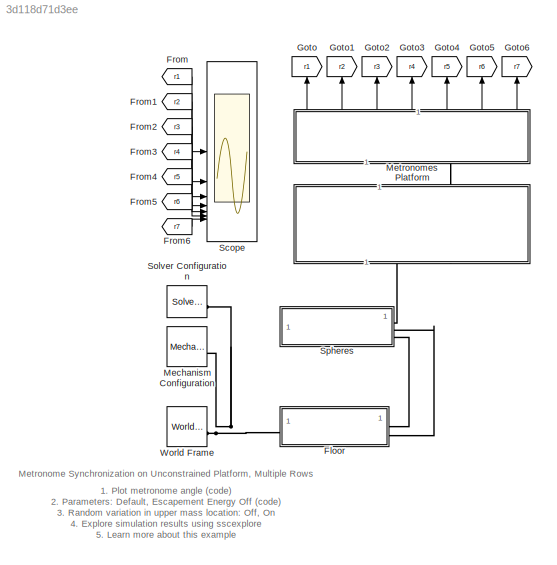
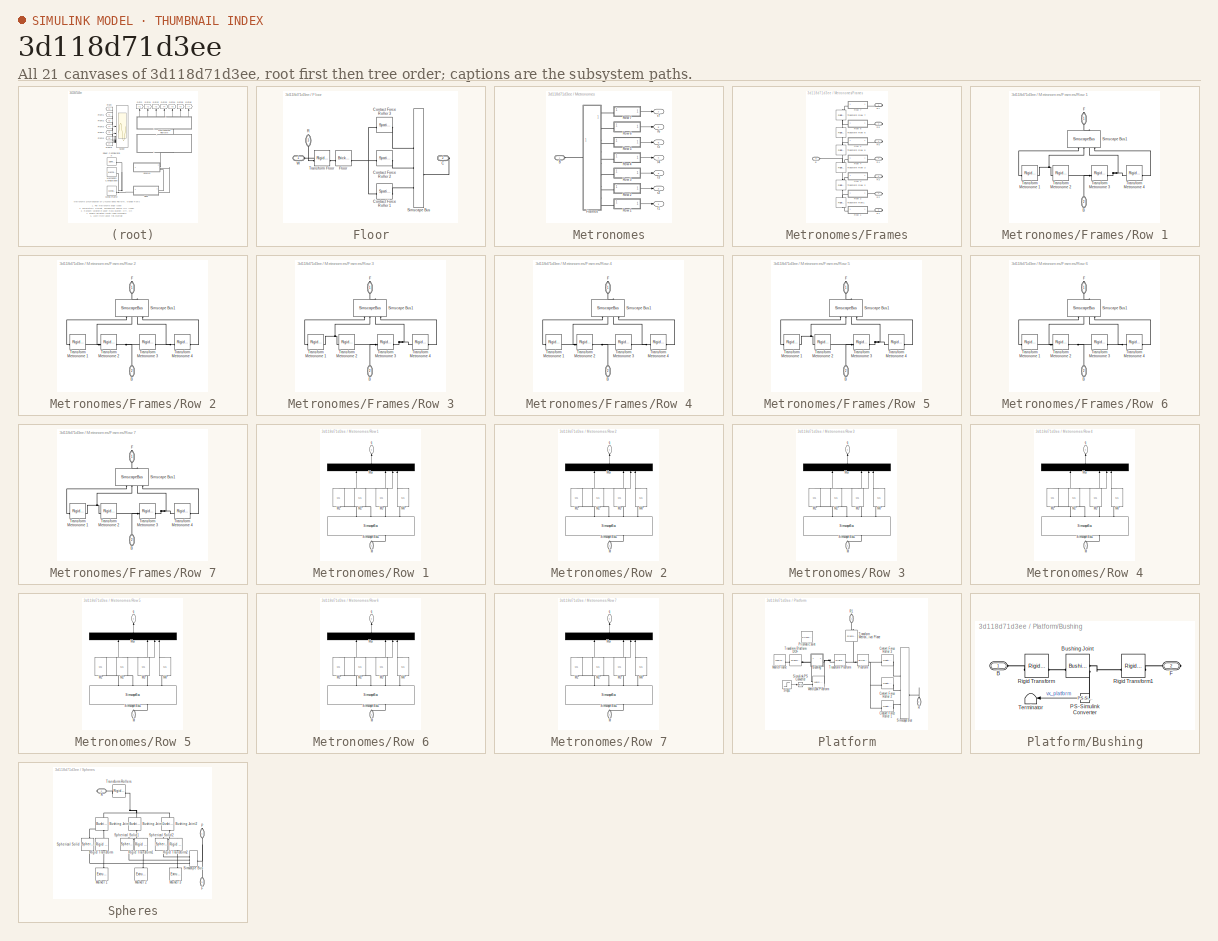
[diagram: thumbnail index - all 21 canvases of the model, root first then tree order]
MODEL slx_3d118d71d3ee
KIND model
CONFIG AbsTol = 1e-3
CONFIG EnableMultiTasking = on
CONFIG MaxStep = 1e-2
CONFIG PreLoadFcn = sm_metronome_sync_param
CONFIG SolverName = ode23t
CONFIG StopTime = 5.52*60
BLOCK [SubSystem] Floor
BLOCK [PMIOPort] Floor/C
  Port = 2
  Side = Right
BLOCK [Reference] Floor/Contact Force Roller 1  REF=sm_lib/Forces and
Torques/Spatial
Contact Force
  SourceBlock = sm_lib/Forces and\nTorques/Spatial\nContact Force
  SourceType = Spatial\nContact Force
BLOCK [Reference] Floor/Contact Force Roller 2  REF=sm_lib/Forces and
Torques/Spatial
Contact Force
  SourceBlock = sm_lib/Forces and\nTorques/Spatial\nContact Force
  SourceType = Spatial\nContact Force
BLOCK [Reference] Floor/Contact Force Roller 3  REF=sm_lib/Forces and
Torques/Spatial
Contact Force
  SourceBlock = sm_lib/Forces and\nTorques/Spatial\nContact Force
  SourceType = Spatial\nContact Force
BLOCK [Reference] Floor/Floor  REF=sm_lib/Body Elements/Brick Solid
  SourceBlock = sm_lib/Body Elements/Brick Solid
  SourceType = Brick Solid
BLOCK [PMIOPort] Floor/R
  NameLocation = right
  Port = 3
  Side = Right
BLOCK [SimscapeBus] Floor/Simscape Bus
  HierarchyStrings = R3;R2;R1
BLOCK [Reference] Floor/Transform Floor  REF=sm_lib/Frames and
Transforms/Rigid
Transform
  SourceBlock = sm_lib/Frames and\nTransforms/Rigid\nTransform
  SourceType = Rigid\nTransform
BLOCK [PMIOPort] Floor/W
  Side = Left
BLOCK [From] From
  GotoTag = r1
BLOCK [From] From1
  GotoTag = r2
BLOCK [From] From2
  GotoTag = r3
BLOCK [From] From3
  GotoTag = r4
BLOCK [From] From4
  GotoTag = r5
BLOCK [From] From5
  GotoTag = r6
BLOCK [From] From6
  GotoTag = r7
BLOCK [Goto] Goto
  GotoTag = r1
  NameLocation = right
BLOCK [Goto] Goto1
  GotoTag = r2
  NameLocation = right
BLOCK [Goto] Goto2
  GotoTag = r3
  NameLocation = right
BLOCK [Goto] Goto3
  GotoTag = r4
  NameLocation = right
BLOCK [Goto] Goto4
  GotoTag = r5
  NameLocation = right
BLOCK [Goto] Goto5
  GotoTag = r6
  NameLocation = right
BLOCK [Goto] Goto6
  GotoTag = r7
  NameLocation = right
BLOCK [Reference] Mechanism Configuration  REF=sm_lib/Utilities/Mechanism
Configuration
  SourceBlock = sm_lib/Utilities/Mechanism\nConfiguration
  SourceType = Mechanism\nConfiguration
BLOCK [SubSystem] Metronomes
  NameLocation = right
BLOCK [PMIOPort] Metronomes/B
  Side = Left
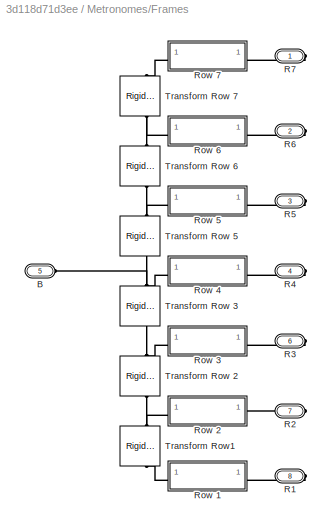
BLOCK [SubSystem] Metronomes/Frames
BLOCK [PMIOPort] Metronomes/Frames/B
  Port = 5
  Side = Left
BLOCK [PMIOPort] Metronomes/Frames/R1
  Port = 8
  Side = Right
BLOCK [PMIOPort] Metronomes/Frames/R2
  Port = 7
  Side = Right
BLOCK [PMIOPort] Metronomes/Frames/R3
  Port = 6
  Side = Right
BLOCK [PMIOPort] Metronomes/Frames/R4
  Port = 4
  Side = Right
BLOCK [PMIOPort] Metronomes/Frames/R5
  Port = 3
  Side = Right
BLOCK [PMIOPort] Metronomes/Frames/R6
  Port = 2
  Side = Right
BLOCK [PMIOPort] Metronomes/Frames/R7
  Side = Right
BLOCK [SubSystem] Metronomes/Frames/Row 1
BLOCK [PMIOPort] Metronomes/Frames/Row 1/B
  NameLocation = left
  Port = 2
  Side = Left
BLOCK [PMIOPort] Metronomes/Frames/Row 1/F
  NameLocation = left
  Side = Right
BLOCK [SimscapeBus] Metronomes/Frames/Row 1/Simscape Bus1
  HierarchyStrings = M1;M2;M3;M4
  NameLocation = right
BLOCK [Reference] Metronomes/Frames/Row 1/Transform Metronome 1  REF=sm_lib/Frames and
Transforms/Rigid
Transform
  SourceBlock = sm_lib/Frames and\nTransforms/Rigid\nTransform
  SourceType = Rigid\nTransform
BLOCK [Reference] Metronomes/Frames/Row 1/Transform Metronome 2  REF=sm_lib/Frames and
Transforms/Rigid
Transform
  SourceBlock = sm_lib/Frames and\nTransforms/Rigid\nTransform
  SourceType = Rigid\nTransform
BLOCK [Reference] Metronomes/Frames/Row 1/Transform Metronome 3  REF=sm_lib/Frames and
Transforms/Rigid
Transform
  SourceBlock = sm_lib/Frames and\nTransforms/Rigid\nTransform
  SourceType = Rigid\nTransform
BLOCK [Reference] Metronomes/Frames/Row 1/Transform Metronome 4  REF=sm_lib/Frames and
Transforms/Rigid
Transform
  SourceBlock = sm_lib/Frames and\nTransforms/Rigid\nTransform
  SourceType = Rigid\nTransform
BLOCK [SubSystem] Metronomes/Frames/Row 2
BLOCK [PMIOPort] Metronomes/Frames/Row 2/B
  NameLocation = left
  Port = 2
  Side = Left
BLOCK [PMIOPort] Metronomes/Frames/Row 2/F
  NameLocation = left
  Side = Right
BLOCK [SimscapeBus] Metronomes/Frames/Row 2/Simscape Bus1
  HierarchyStrings = M1;M2;M3;M4
  NameLocation = right
BLOCK [Reference] Metronomes/Frames/Row 2/Transform Metronome 1  REF=sm_lib/Frames and
Transforms/Rigid
Transform
  SourceBlock = sm_lib/Frames and\nTransforms/Rigid\nTransform
  SourceType = Rigid\nTransform
BLOCK [Reference] Metronomes/Frames/Row 2/Transform Metronome 2  REF=sm_lib/Frames and
Transforms/Rigid
Transform
  SourceBlock = sm_lib/Frames and\nTransforms/Rigid\nTransform
  SourceType = Rigid\nTransform
BLOCK [Reference] Metronomes/Frames/Row 2/Transform Metronome 3  REF=sm_lib/Frames and
Transforms/Rigid
Transform
  SourceBlock = sm_lib/Frames and\nTransforms/Rigid\nTransform
  SourceType = Rigid\nTransform
BLOCK [Reference] Metronomes/Frames/Row 2/Transform Metronome 4  REF=sm_lib/Frames and
Transforms/Rigid
Transform
  SourceBlock = sm_lib/Frames and\nTransforms/Rigid\nTransform
  SourceType = Rigid\nTransform
BLOCK [SubSystem] Metronomes/Frames/Row 3
BLOCK [PMIOPort] Metronomes/Frames/Row 3/B
  NameLocation = left
  Port = 2
  Side = Left
BLOCK [PMIOPort] Metronomes/Frames/Row 3/F
  NameLocation = left
  Side = Right
BLOCK [SimscapeBus] Metronomes/Frames/Row 3/Simscape Bus1
  HierarchyStrings = M1;M2;M3;M4
  NameLocation = right
BLOCK [Reference] Metronomes/Frames/Row 3/Transform Metronome 1  REF=sm_lib/Frames and
Transforms/Rigid
Transform
  SourceBlock = sm_lib/Frames and\nTransforms/Rigid\nTransform
  SourceType = Rigid\nTransform
BLOCK [Reference] Metronomes/Frames/Row 3/Transform Metronome 2  REF=sm_lib/Frames and
Transforms/Rigid
Transform
  SourceBlock = sm_lib/Frames and\nTransforms/Rigid\nTransform
  SourceType = Rigid\nTransform
BLOCK [Reference] Metronomes/Frames/Row 3/Transform Metronome 3  REF=sm_lib/Frames and
Transforms/Rigid
Transform
  SourceBlock = sm_lib/Frames and\nTransforms/Rigid\nTransform
  SourceType = Rigid\nTransform
BLOCK [Reference] Metronomes/Frames/Row 3/Transform Metronome 4  REF=sm_lib/Frames and
Transforms/Rigid
Transform
  SourceBlock = sm_lib/Frames and\nTransforms/Rigid\nTransform
  SourceType = Rigid\nTransform
BLOCK [SubSystem] Metronomes/Frames/Row 4
BLOCK [PMIOPort] Metronomes/Frames/Row 4/B
  NameLocation = left
  Port = 2
  Side = Left
BLOCK [PMIOPort] Metronomes/Frames/Row 4/F
  NameLocation = left
  Side = Right
BLOCK [SimscapeBus] Metronomes/Frames/Row 4/Simscape Bus1
  HierarchyStrings = M1;M2;M3;M4
  NameLocation = right
BLOCK [Reference] Metronomes/Frames/Row 4/Transform Metronome 1  REF=sm_lib/Frames and
Transforms/Rigid
Transform
  SourceBlock = sm_lib/Frames and\nTransforms/Rigid\nTransform
  SourceType = Rigid\nTransform
BLOCK [Reference] Metronomes/Frames/Row 4/Transform Metronome 2  REF=sm_lib/Frames and
Transforms/Rigid
Transform
  SourceBlock = sm_lib/Frames and\nTransforms/Rigid\nTransform
  SourceType = Rigid\nTransform
BLOCK [Reference] Metronomes/Frames/Row 4/Transform Metronome 3  REF=sm_lib/Frames and
Transforms/Rigid
Transform
  SourceBlock = sm_lib/Frames and\nTransforms/Rigid\nTransform
  SourceType = Rigid\nTransform
BLOCK [Reference] Metronomes/Frames/Row 4/Transform Metronome 4  REF=sm_lib/Frames and
Transforms/Rigid
Transform
  SourceBlock = sm_lib/Frames and\nTransforms/Rigid\nTransform
  SourceType = Rigid\nTransform
BLOCK [SubSystem] Metronomes/Frames/Row 5
BLOCK [PMIOPort] Metronomes/Frames/Row 5/B
  NameLocation = left
  Port = 2
  Side = Left
BLOCK [PMIOPort] Metronomes/Frames/Row 5/F
  NameLocation = left
  Side = Right
BLOCK [SimscapeBus] Metronomes/Frames/Row 5/Simscape Bus1
  HierarchyStrings = M1;M2;M3;M4
  NameLocation = right
BLOCK [Reference] Metronomes/Frames/Row 5/Transform Metronome 1  REF=sm_lib/Frames and
Transforms/Rigid
Transform
  SourceBlock = sm_lib/Frames and\nTransforms/Rigid\nTransform
  SourceType = Rigid\nTransform
BLOCK [Reference] Metronomes/Frames/Row 5/Transform Metronome 2  REF=sm_lib/Frames and
Transforms/Rigid
Transform
  SourceBlock = sm_lib/Frames and\nTransforms/Rigid\nTransform
  SourceType = Rigid\nTransform
BLOCK [Reference] Metronomes/Frames/Row 5/Transform Metronome 3  REF=sm_lib/Frames and
Transforms/Rigid
Transform
  SourceBlock = sm_lib/Frames and\nTransforms/Rigid\nTransform
  SourceType = Rigid\nTransform
BLOCK [Reference] Metronomes/Frames/Row 5/Transform Metronome 4  REF=sm_lib/Frames and
Transforms/Rigid
Transform
  SourceBlock = sm_lib/Frames and\nTransforms/Rigid\nTransform
  SourceType = Rigid\nTransform
BLOCK [SubSystem] Metronomes/Frames/Row 6
BLOCK [PMIOPort] Metronomes/Frames/Row 6/B
  NameLocation = left
  Port = 2
  Side = Left
BLOCK [PMIOPort] Metronomes/Frames/Row 6/F
  NameLocation = left
  Side = Right
BLOCK [SimscapeBus] Metronomes/Frames/Row 6/Simscape Bus1
  HierarchyStrings = M1;M2;M3;M4
  NameLocation = right
BLOCK [Reference] Metronomes/Frames/Row 6/Transform Metronome 1  REF=sm_lib/Frames and
Transforms/Rigid
Transform
  SourceBlock = sm_lib/Frames and\nTransforms/Rigid\nTransform
  SourceType = Rigid\nTransform
BLOCK [Reference] Metronomes/Frames/Row 6/Transform Metronome 2  REF=sm_lib/Frames and
Transforms/Rigid
Transform
  SourceBlock = sm_lib/Frames and\nTransforms/Rigid\nTransform
  SourceType = Rigid\nTransform
BLOCK [Reference] Metronomes/Frames/Row 6/Transform Metronome 3  REF=sm_lib/Frames and
Transforms/Rigid
Transform
  SourceBlock = sm_lib/Frames and\nTransforms/Rigid\nTransform
  SourceType = Rigid\nTransform
BLOCK [Reference] Metronomes/Frames/Row 6/Transform Metronome 4  REF=sm_lib/Frames and
Transforms/Rigid
Transform
  SourceBlock = sm_lib/Frames and\nTransforms/Rigid\nTransform
  SourceType = Rigid\nTransform
BLOCK [SubSystem] Metronomes/Frames/Row 7
BLOCK [PMIOPort] Metronomes/Frames/Row 7/B
  NameLocation = left
  Port = 2
  Side = Left
BLOCK [PMIOPort] Metronomes/Frames/Row 7/F
  NameLocation = left
  Side = Right
BLOCK [SimscapeBus] Metronomes/Frames/Row 7/Simscape Bus1
  HierarchyStrings = M1;M2;M3;M4
  NameLocation = right
BLOCK [Reference] Metronomes/Frames/Row 7/Transform Metronome 1  REF=sm_lib/Frames and
Transforms/Rigid
Transform
  SourceBlock = sm_lib/Frames and\nTransforms/Rigid\nTransform
  SourceType = Rigid\nTransform
BLOCK [Reference] Metronomes/Frames/Row 7/Transform Metronome 2  REF=sm_lib/Frames and
Transforms/Rigid
Transform
  SourceBlock = sm_lib/Frames and\nTransforms/Rigid\nTransform
  SourceType = Rigid\nTransform
BLOCK [Reference] Metronomes/Frames/Row 7/Transform Metronome 3  REF=sm_lib/Frames and
Transforms/Rigid
Transform
  SourceBlock = sm_lib/Frames and\nTransforms/Rigid\nTransform
  SourceType = Rigid\nTransform
BLOCK [Reference] Metronomes/Frames/Row 7/Transform Metronome 4  REF=sm_lib/Frames and
Transforms/Rigid
Transform
  SourceBlock = sm_lib/Frames and\nTransforms/Rigid\nTransform
  SourceType = Rigid\nTransform
BLOCK [Reference] Metronomes/Frames/Transform Row 2  REF=sm_lib/Frames and
Transforms/Rigid
Transform
  NameLocation = left
  SourceBlock = sm_lib/Frames and\nTransforms/Rigid\nTransform
  SourceType = Rigid\nTransform
BLOCK [Reference] Metronomes/Frames/Transform Row 3  REF=sm_lib/Frames and
Transforms/Rigid
Transform
  NameLocation = left
  SourceBlock = sm_lib/Frames and\nTransforms/Rigid\nTransform
  SourceType = Rigid\nTransform
BLOCK [Reference] Metronomes/Frames/Transform Row 5  REF=sm_lib/Frames and
Transforms/Rigid
Transform
  NameLocation = left
  SourceBlock = sm_lib/Frames and\nTransforms/Rigid\nTransform
  SourceType = Rigid\nTransform
BLOCK [Reference] Metronomes/Frames/Transform Row 6  REF=sm_lib/Frames and
Transforms/Rigid
Transform
  NameLocation = left
  SourceBlock = sm_lib/Frames and\nTransforms/Rigid\nTransform
  SourceType = Rigid\nTransform
BLOCK [Reference] Metronomes/Frames/Transform Row 7  REF=sm_lib/Frames and
Transforms/Rigid
Transform
  NameLocation = left
  SourceBlock = sm_lib/Frames and\nTransforms/Rigid\nTransform
  SourceType = Rigid\nTransform
BLOCK [Reference] Metronomes/Frames/Transform Row1  REF=sm_lib/Frames and
Transforms/Rigid
Transform
  NameLocation = left
  SourceBlock = sm_lib/Frames and\nTransforms/Rigid\nTransform
  SourceType = Rigid\nTransform
BLOCK [SubSystem] Metronomes/Row 1
BLOCK [PMIOPort] Metronomes/Row 1/M
  NameLocation = right
  Side = Left
BLOCK [Reference] Metronomes/Row 1/M1  REF=sm_metronome_lib/M1  (lib defined in slx_9433ba20aabc)
  NameLocation = right
  SourceBlock = sm_metronome_lib/M1
  SourceType = Metronome
BLOCK [Reference] Metronomes/Row 1/M2  REF=sm_metronome_lib/M1  (lib defined in slx_9433ba20aabc)
  NameLocation = right
  SourceBlock = sm_metronome_lib/M1
  SourceType = Metronome
BLOCK [Reference] Metronomes/Row 1/M3  REF=sm_metronome_lib/M1  (lib defined in slx_9433ba20aabc)
  NameLocation = right
  SourceBlock = sm_metronome_lib/M1
  SourceType = Metronome
BLOCK [Reference] Metronomes/Row 1/M4  REF=sm_metronome_lib/M1  (lib defined in slx_9433ba20aabc)
  NameLocation = right
  SourceBlock = sm_metronome_lib/M1
  SourceType = Metronome
BLOCK [Mux] Metronomes/Row 1/Mux
  DisplayOption = bar
  NameLocation = right
BLOCK [SimscapeBus] Metronomes/Row 1/Simscape Bus1
  HierarchyStrings = M1;M2;M3;M4
  NameLocation = left
BLOCK [Outport] Metronomes/Row 1/q
  NameLocation = right
BLOCK [SubSystem] Metronomes/Row 2
BLOCK [PMIOPort] Metronomes/Row 2/M
  NameLocation = right
  Side = Left
BLOCK [Reference] Metronomes/Row 2/M1  REF=sm_metronome_lib/M1  (lib defined in slx_9433ba20aabc)
  NameLocation = right
  SourceBlock = sm_metronome_lib/M1
  SourceType = Metronome
BLOCK [Reference] Metronomes/Row 2/M2  REF=sm_metronome_lib/M1  (lib defined in slx_9433ba20aabc)
  NameLocation = right
  SourceBlock = sm_metronome_lib/M1
  SourceType = Metronome
BLOCK [Reference] Metronomes/Row 2/M3  REF=sm_metronome_lib/M1  (lib defined in slx_9433ba20aabc)
  NameLocation = right
  SourceBlock = sm_metronome_lib/M1
  SourceType = Metronome
BLOCK [Reference] Metronomes/Row 2/M4  REF=sm_metronome_lib/M1  (lib defined in slx_9433ba20aabc)
  NameLocation = right
  SourceBlock = sm_metronome_lib/M1
  SourceType = Metronome
BLOCK [Mux] Metronomes/Row 2/Mux
  DisplayOption = bar
  NameLocation = right
BLOCK [SimscapeBus] Metronomes/Row 2/Simscape Bus1
  HierarchyStrings = M1;M2;M3;M4
  NameLocation = left
BLOCK [Outport] Metronomes/Row 2/q
  NameLocation = right
BLOCK [SubSystem] Metronomes/Row 3
BLOCK [PMIOPort] Metronomes/Row 3/M
  NameLocation = right
  Side = Left
BLOCK [Reference] Metronomes/Row 3/M1  REF=sm_metronome_lib/M1  (lib defined in slx_9433ba20aabc)
  NameLocation = right
  SourceBlock = sm_metronome_lib/M1
  SourceType = Metronome
BLOCK [Reference] Metronomes/Row 3/M2  REF=sm_metronome_lib/M1  (lib defined in slx_9433ba20aabc)
  NameLocation = right
  SourceBlock = sm_metronome_lib/M1
  SourceType = Metronome
BLOCK [Reference] Metronomes/Row 3/M3  REF=sm_metronome_lib/M1  (lib defined in slx_9433ba20aabc)
  NameLocation = right
  SourceBlock = sm_metronome_lib/M1
  SourceType = Metronome
BLOCK [Reference] Metronomes/Row 3/M4  REF=sm_metronome_lib/M1  (lib defined in slx_9433ba20aabc)
  NameLocation = right
  SourceBlock = sm_metronome_lib/M1
  SourceType = Metronome
BLOCK [Mux] Metronomes/Row 3/Mux
  DisplayOption = bar
  NameLocation = right
BLOCK [SimscapeBus] Metronomes/Row 3/Simscape Bus1
  HierarchyStrings = M1;M2;M3;M4
  NameLocation = left
BLOCK [Outport] Metronomes/Row 3/q
  NameLocation = right
BLOCK [SubSystem] Metronomes/Row 4
BLOCK [PMIOPort] Metronomes/Row 4/M
  NameLocation = right
  Side = Left
BLOCK [Reference] Metronomes/Row 4/M1  REF=sm_metronome_lib/M1  (lib defined in slx_9433ba20aabc)
  NameLocation = right
  SourceBlock = sm_metronome_lib/M1
  SourceType = Metronome
BLOCK [Reference] Metronomes/Row 4/M2  REF=sm_metronome_lib/M1  (lib defined in slx_9433ba20aabc)
  NameLocation = right
  SourceBlock = sm_metronome_lib/M1
  SourceType = Metronome
BLOCK [Reference] Metronomes/Row 4/M3  REF=sm_metronome_lib/M1  (lib defined in slx_9433ba20aabc)
  NameLocation = right
  SourceBlock = sm_metronome_lib/M1
  SourceType = Metronome
BLOCK [Reference] Metronomes/Row 4/M4  REF=sm_metronome_lib/M1  (lib defined in slx_9433ba20aabc)
  NameLocation = right
  SourceBlock = sm_metronome_lib/M1
  SourceType = Metronome
BLOCK [Mux] Metronomes/Row 4/Mux
  DisplayOption = bar
  NameLocation = right
BLOCK [SimscapeBus] Metronomes/Row 4/Simscape Bus1
  HierarchyStrings = M1;M2;M3;M4
  NameLocation = left
BLOCK [Outport] Metronomes/Row 4/q
  NameLocation = right
BLOCK [SubSystem] Metronomes/Row 5
BLOCK [PMIOPort] Metronomes/Row 5/M
  NameLocation = right
  Side = Left
BLOCK [Reference] Metronomes/Row 5/M1  REF=sm_metronome_lib/M1  (lib defined in slx_9433ba20aabc)
  NameLocation = right
  SourceBlock = sm_metronome_lib/M1
  SourceType = Metronome
BLOCK [Reference] Metronomes/Row 5/M2  REF=sm_metronome_lib/M1  (lib defined in slx_9433ba20aabc)
  NameLocation = right
  SourceBlock = sm_metronome_lib/M1
  SourceType = Metronome
BLOCK [Reference] Metronomes/Row 5/M3  REF=sm_metronome_lib/M1  (lib defined in slx_9433ba20aabc)
  NameLocation = right
  SourceBlock = sm_metronome_lib/M1
  SourceType = Metronome
BLOCK [Reference] Metronomes/Row 5/M4  REF=sm_metronome_lib/M1  (lib defined in slx_9433ba20aabc)
  NameLocation = right
  SourceBlock = sm_metronome_lib/M1
  SourceType = Metronome
BLOCK [Mux] Metronomes/Row 5/Mux
  DisplayOption = bar
  NameLocation = right
BLOCK [SimscapeBus] Metronomes/Row 5/Simscape Bus1
  HierarchyStrings = M1;M2;M3;M4
  NameLocation = left
BLOCK [Outport] Metronomes/Row 5/q
  NameLocation = right
BLOCK [SubSystem] Metronomes/Row 6
BLOCK [PMIOPort] Metronomes/Row 6/M
  NameLocation = right
  Side = Left
BLOCK [Reference] Metronomes/Row 6/M1  REF=sm_metronome_lib/M1  (lib defined in slx_9433ba20aabc)
  NameLocation = right
  SourceBlock = sm_metronome_lib/M1
  SourceType = Metronome
BLOCK [Reference] Metronomes/Row 6/M2  REF=sm_metronome_lib/M1  (lib defined in slx_9433ba20aabc)
  NameLocation = right
  SourceBlock = sm_metronome_lib/M1
  SourceType = Metronome
BLOCK [Reference] Metronomes/Row 6/M3  REF=sm_metronome_lib/M1  (lib defined in slx_9433ba20aabc)
  NameLocation = right
  SourceBlock = sm_metronome_lib/M1
  SourceType = Metronome
BLOCK [Reference] Metronomes/Row 6/M4  REF=sm_metronome_lib/M1  (lib defined in slx_9433ba20aabc)
  NameLocation = right
  SourceBlock = sm_metronome_lib/M1
  SourceType = Metronome
BLOCK [Mux] Metronomes/Row 6/Mux
  DisplayOption = bar
  NameLocation = right
BLOCK [SimscapeBus] Metronomes/Row 6/Simscape Bus1
  HierarchyStrings = M1;M2;M3;M4
  NameLocation = left
BLOCK [Outport] Metronomes/Row 6/q
  NameLocation = right
BLOCK [SubSystem] Metronomes/Row 7
BLOCK [PMIOPort] Metronomes/Row 7/M
  NameLocation = right
  Side = Left
BLOCK [Reference] Metronomes/Row 7/M1  REF=sm_metronome_lib/M1  (lib defined in slx_9433ba20aabc)
  NameLocation = right
  SourceBlock = sm_metronome_lib/M1
  SourceType = Metronome
BLOCK [Reference] Metronomes/Row 7/M2  REF=sm_metronome_lib/M1  (lib defined in slx_9433ba20aabc)
  NameLocation = right
  SourceBlock = sm_metronome_lib/M1
  SourceType = Metronome
BLOCK [Reference] Metronomes/Row 7/M3  REF=sm_metronome_lib/M1  (lib defined in slx_9433ba20aabc)
  NameLocation = right
  SourceBlock = sm_metronome_lib/M1
  SourceType = Metronome
BLOCK [Reference] Metronomes/Row 7/M4  REF=sm_metronome_lib/M1  (lib defined in slx_9433ba20aabc)
  NameLocation = right
  SourceBlock = sm_metronome_lib/M1
  SourceType = Metronome
BLOCK [Mux] Metronomes/Row 7/Mux
  DisplayOption = bar
  NameLocation = right
BLOCK [SimscapeBus] Metronomes/Row 7/Simscape Bus1
  HierarchyStrings = M1;M2;M3;M4
  NameLocation = left
BLOCK [Outport] Metronomes/Row 7/q
  NameLocation = right
BLOCK [Outport] Metronomes/r1
BLOCK [Outport] Metronomes/r2
  Port = 2
BLOCK [Outport] Metronomes/r3
  Port = 3
BLOCK [Outport] Metronomes/r4
  Port = 4
BLOCK [Outport] Metronomes/r5
  Port = 5
BLOCK [Outport] Metronomes/r6
  Port = 6
BLOCK [Outport] Metronomes/r7
  Port = 7
BLOCK [SubSystem] Platform
  NameLocation = right
BLOCK [SubSystem] Platform/Bushing
BLOCK [PMIOPort] Platform/Bushing/B
  Side = Left
BLOCK [Reference] Platform/Bushing/Bushing Joint  REF=sm_lib/Joints/Bushing Joint
  SourceBlock = sm_lib/Joints/Bushing Joint
  SourceType = Bushing Joint
BLOCK [PMIOPort] Platform/Bushing/F
  Port = 2
  Side = Right
BLOCK [Reference] Platform/Bushing/PS-Simulink Converter  REF=nesl_utility/PS-Simulink
Converter
  NameLocation = top
  SourceBlock = nesl_utility/PS-Simulink\nConverter
  SourceType = PS-Simulink\nConverter
BLOCK [Reference] Platform/Bushing/Rigid Transform  REF=sm_lib/Frames and
Transforms/Rigid
Transform
  SourceBlock = sm_lib/Frames and\nTransforms/Rigid\nTransform
  SourceType = Rigid\nTransform
BLOCK [Reference] Platform/Bushing/Rigid Transform1  REF=sm_lib/Frames and
Transforms/Rigid
Transform
  SourceBlock = sm_lib/Frames and\nTransforms/Rigid\nTransform
  SourceType = Rigid\nTransform
BLOCK [Terminator] Platform/Bushing/Terminator
  NameLocation = top
BLOCK [Reference] Platform/Contact Force Roller 1  REF=sm_lib/Forces and
Torques/Spatial
Contact Force
  SourceBlock = sm_lib/Forces and\nTorques/Spatial\nContact Force
  SourceType = Spatial\nContact Force
BLOCK [Reference] Platform/Contact Force Roller 2  REF=sm_lib/Forces and
Torques/Spatial
Contact Force
  SourceBlock = sm_lib/Forces and\nTorques/Spatial\nContact Force
  SourceType = Spatial\nContact Force
BLOCK [Reference] Platform/Contact Force Roller 3  REF=sm_lib/Forces and
Torques/Spatial
Contact Force
  SourceBlock = sm_lib/Forces and\nTorques/Spatial\nContact Force
  SourceType = Spatial\nContact Force
BLOCK [Reference] Platform/Platform  REF=sm_lib/Body Elements/Brick Solid
  SourceBlock = sm_lib/Body Elements/Brick Solid
  SourceType = Brick Solid
BLOCK [Reference] Platform/Prismatic Joint  REF=sm_lib/Joints/Prismatic
Joint
  Commented = on
  SourceBlock = sm_lib/Joints/Prismatic\nJoint
  SourceType = Prismatic\nJoint
BLOCK [PMIOPort] Platform/R
  NameLocation = left
  Port = 2
  Side = Left
BLOCK [PMIOPort] Platform/R1
  NameLocation = right
  Side = Right
BLOCK [SimscapeBus] Platform/Simscape Bus
  HierarchyStrings = R3;R2;R1
BLOCK [Reference] Platform/Simulink-PS Converter  REF=nesl_utility/Simulink-PS
Converter
  NameLocation = top
  SourceBlock = nesl_utility/Simulink-PS\nConverter
  SourceType = Simulink-PS\nConverter
BLOCK [Step] Platform/Step1
  FinalValue = -1
  NameLocation = top
  SampleTime = 0
  Time = t_unlock
BLOCK [Reference] Platform/Transform Metronome Pivot Plane  REF=sm_lib/Frames and
Transforms/Rigid
Transform
  NameLocation = left
  SourceBlock = sm_lib/Frames and\nTransforms/Rigid\nTransform
  SourceType = Rigid\nTransform
BLOCK [Reference] Platform/Transform Platform  REF=sm_lib/Frames and
Transforms/Rigid
Transform
  SourceBlock = sm_lib/Frames and\nTransforms/Rigid\nTransform
  SourceType = Rigid\nTransform
BLOCK [Reference] Platform/Transform Platform DOF  REF=sm_lib/Frames and
Transforms/Rigid
Transform
  SourceBlock = sm_lib/Frames and\nTransforms/Rigid\nTransform
  SourceType = Rigid\nTransform
BLOCK [Reference] Platform/Weld Lock Platform  REF=sm_lib/Joints/Weld Joint
  SourceBlock = sm_lib/Joints/Weld Joint
  SourceType = Weld Joint
BLOCK [Reference] Platform/World Frame  REF=sm_lib/Frames and
Transforms/World Frame
  SourceBlock = sm_lib/Frames and\nTransforms/World Frame
  SourceType = World Frame
BLOCK [Scope] Scope
  ActiveDisplayYMaximum = 1.08047
  ActiveDisplayYMinimum = -1.08109
  DataLogging = on
  DataLoggingSaveFormat = Structure With Time
  DataLoggingVariableName = MetronomeAngles
  Floating = off
  GraphicalSettings = {"GraphicalSettings":{"LegacySettings":true,"Style":{"AxesScalingProperties":{"ScaleAxesLimitsAtStop":false},"Style":{"AxesColor":"[0 0 0]","BackgroundColor":"[0 0 0]","ChannelNames":[""],"ColorOrder":"[1 0.909803921568627 0.392156862745098;0.149019607843137 0.549019607843137 0.866666666666667;0.96078431372549 0.466666666666667 0.16078431372549;0.286274509803922 0.858823529411765 0.250980392156863...<+1147ch>
  MultipleDisplayCache = [{"MaxYLimMag":1.08109,"MaxYLimReal":1.08047,"MinYLimMag":0,"MinYLimReal":-1.08109,"PlotAsMagnitudePhase":false,"ShowGrid":true,"ShowLegend":false,"Title":"%<SignalLabel>","YLabel":""}]
  NumInputPorts = 7
  ShowTimeAxisLabel = on
  TimeSpan = 5.52/2
  TimeSpanOverrunAction = Scroll
  TimeUnits = Seconds
  WasSavedAsWebScope = on
  WindowPosition = [613 320 582 458]
BLOCK [Reference] Solver Configuration  REF=nesl_utility/Solver
Configuration
  SourceBlock = nesl_utility/Solver\nConfiguration
  SourceType = Solver\nConfiguration
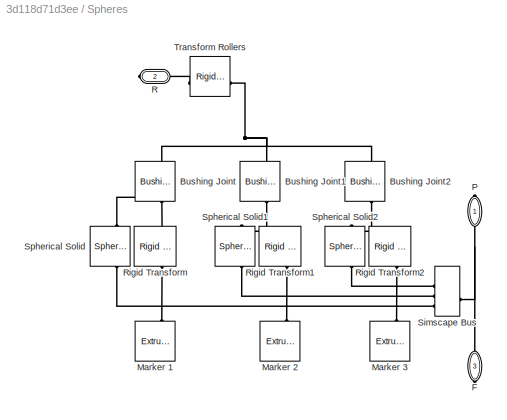
BLOCK [SubSystem] Spheres
BLOCK [Reference] Spheres/Bushing Joint  REF=sm_lib/Joints/Bushing Joint
  NameLocation = left
  SourceBlock = sm_lib/Joints/Bushing Joint
  SourceType = Bushing Joint
BLOCK [Reference] Spheres/Bushing Joint1  REF=sm_lib/Joints/Bushing Joint
  NameLocation = left
  SourceBlock = sm_lib/Joints/Bushing Joint
  SourceType = Bushing Joint
BLOCK [Reference] Spheres/Bushing Joint2  REF=sm_lib/Joints/Bushing Joint
  NameLocation = left
  SourceBlock = sm_lib/Joints/Bushing Joint
  SourceType = Bushing Joint
BLOCK [PMIOPort] Spheres/F
  NameLocation = left
  Port = 3
  Side = Right
BLOCK [Reference] Spheres/Marker 1  REF=sm_lib/Body Elements/Extruded Solid
  SourceBlock = sm_lib/Body Elements/Extruded Solid
  SourceType = Extruded Solid
BLOCK [Reference] Spheres/Marker 2  REF=sm_lib/Body Elements/Extruded Solid
  SourceBlock = sm_lib/Body Elements/Extruded Solid
  SourceType = Extruded Solid
BLOCK [Reference] Spheres/Marker 3  REF=sm_lib/Body Elements/Extruded Solid
  SourceBlock = sm_lib/Body Elements/Extruded Solid
  SourceType = Extruded Solid
BLOCK [PMIOPort] Spheres/P
  NameLocation = left
  Side = Right
BLOCK [PMIOPort] Spheres/R
  Port = 2
  Side = Right
BLOCK [Reference] Spheres/Rigid Transform  REF=sm_lib/Frames and
Transforms/Rigid
Transform
  NameLocation = right
  SourceBlock = sm_lib/Frames and\nTransforms/Rigid\nTransform
  SourceType = Rigid\nTransform
BLOCK [Reference] Spheres/Rigid Transform1  REF=sm_lib/Frames and
Transforms/Rigid
Transform
  NameLocation = right
  SourceBlock = sm_lib/Frames and\nTransforms/Rigid\nTransform
  SourceType = Rigid\nTransform
BLOCK [Reference] Spheres/Rigid Transform2  REF=sm_lib/Frames and
Transforms/Rigid
Transform
  NameLocation = right
  SourceBlock = sm_lib/Frames and\nTransforms/Rigid\nTransform
  SourceType = Rigid\nTransform
BLOCK [SimscapeBus] Spheres/Simscape Bus
  HierarchyStrings = R3;R2;R1
BLOCK [Reference] Spheres/Spherical Solid  REF=sm_lib/Body Elements/Spherical Solid
  NameLocation = right
  SourceBlock = sm_lib/Body Elements/Spherical Solid
  SourceType = Spherical Solid
BLOCK [Reference] Spheres/Spherical Solid1  REF=sm_lib/Body Elements/Spherical Solid
  NameLocation = right
  SourceBlock = sm_lib/Body Elements/Spherical Solid
  SourceType = Spherical Solid
BLOCK [Reference] Spheres/Spherical Solid2  REF=sm_lib/Body Elements/Spherical Solid
  NameLocation = right
  SourceBlock = sm_lib/Body Elements/Spherical Solid
  SourceType = Spherical Solid
BLOCK [Reference] Spheres/Transform Rollers  REF=sm_lib/Frames and
Transforms/Rigid
Transform
  SourceBlock = sm_lib/Frames and\nTransforms/Rigid\nTransform
  SourceType = Rigid\nTransform
BLOCK [Reference] World Frame  REF=sm_lib/Frames and
Transforms/World Frame
  SourceBlock = sm_lib/Frames and\nTransforms/World Frame
  SourceType = World Frame
ANNOTATION (root): 1. Plot metronome angle ( code ) 2. Parameters: Default , Escapement Energy Off ( code ) 3. Random variation in upper mass location: Off , On 4. Explore simulation results using sscexplore 5. Learn more about this example
ANNOTATION (root): Metronome Synchronization on Unconstrained Platform, Multiple Rows
LINE From1:1 -> Scope:2
LINE From2:1 -> Scope:3
LINE From3:1 -> Scope:4
LINE From4:1 -> Scope:5
LINE From5:1 -> Scope:6
LINE From6:1 -> Scope:7
LINE From:1 -> Scope:1
LINE Metronomes/Row 1/M1:1 -> Metronomes/Row 1/Mux:1
LINE Metronomes/Row 1/M2:1 -> Metronomes/Row 1/Mux:2
LINE Metronomes/Row 1/M3:1 -> Metronomes/Row 1/Mux:3
LINE Metronomes/Row 1/M4:1 -> Metronomes/Row 1/Mux:4
LINE Metronomes/Row 1/Mux:1 -> Metronomes/Row 1/q:1
LINE Metronomes/Row 1:1 -> Metronomes/r1:1
LINE Metronomes/Row 2/M1:1 -> Metronomes/Row 2/Mux:1
LINE Metronomes/Row 2/M2:1 -> Metronomes/Row 2/Mux:2
LINE Metronomes/Row 2/M3:1 -> Metronomes/Row 2/Mux:3
LINE Metronomes/Row 2/M4:1 -> Metronomes/Row 2/Mux:4
LINE Metronomes/Row 2/Mux:1 -> Metronomes/Row 2/q:1
LINE Metronomes/Row 2:1 -> Metronomes/r2:1
LINE Metronomes/Row 3/M1:1 -> Metronomes/Row 3/Mux:1
LINE Metronomes/Row 3/M2:1 -> Metronomes/Row 3/Mux:2
LINE Metronomes/Row 3/M3:1 -> Metronomes/Row 3/Mux:3
LINE Metronomes/Row 3/M4:1 -> Metronomes/Row 3/Mux:4
LINE Metronomes/Row 3/Mux:1 -> Metronomes/Row 3/q:1
LINE Metronomes/Row 3:1 -> Metronomes/r3:1
LINE Metronomes/Row 4/M1:1 -> Metronomes/Row 4/Mux:1
LINE Metronomes/Row 4/M2:1 -> Metronomes/Row 4/Mux:2
LINE Metronomes/Row 4/M3:1 -> Metronomes/Row 4/Mux:3
LINE Metronomes/Row 4/M4:1 -> Metronomes/Row 4/Mux:4
LINE Metronomes/Row 4/Mux:1 -> Metronomes/Row 4/q:1
LINE Metronomes/Row 4:1 -> Metronomes/r4:1
LINE Metronomes/Row 5/M1:1 -> Metronomes/Row 5/Mux:1
LINE Metronomes/Row 5/M2:1 -> Metronomes/Row 5/Mux:2
LINE Metronomes/Row 5/M3:1 -> Metronomes/Row 5/Mux:3
LINE Metronomes/Row 5/M4:1 -> Metronomes/Row 5/Mux:4
LINE Metronomes/Row 5/Mux:1 -> Metronomes/Row 5/q:1
LINE Metronomes/Row 5:1 -> Metronomes/r5:1
LINE Metronomes/Row 6/M1:1 -> Metronomes/Row 6/Mux:1
LINE Metronomes/Row 6/M2:1 -> Metronomes/Row 6/Mux:2
LINE Metronomes/Row 6/M3:1 -> Metronomes/Row 6/Mux:3
LINE Metronomes/Row 6/M4:1 -> Metronomes/Row 6/Mux:4
LINE Metronomes/Row 6/Mux:1 -> Metronomes/Row 6/q:1
LINE Metronomes/Row 6:1 -> Metronomes/r6:1
LINE Metronomes/Row 7/M1:1 -> Metronomes/Row 7/Mux:1
LINE Metronomes/Row 7/M2:1 -> Metronomes/Row 7/Mux:2
LINE Metronomes/Row 7/M3:1 -> Metronomes/Row 7/Mux:3
LINE Metronomes/Row 7/M4:1 -> Metronomes/Row 7/Mux:4
LINE Metronomes/Row 7/Mux:1 -> Metronomes/Row 7/q:1
LINE Metronomes/Row 7:1 -> Metronomes/r7:1
LINE Metronomes:1 -> Goto:1
LINE Metronomes:2 -> Goto1:1
LINE Metronomes:3 -> Goto2:1
LINE Metronomes:4 -> Goto3:1
LINE Metronomes:5 -> Goto4:1
LINE Metronomes:6 -> Goto5:1
LINE Metronomes:7 -> Goto6:1
LINE Platform/Bushing/PS-Simulink Converter:1 -> Platform/Bushing/Terminator:1
LINE Platform/Step1:1 -> Platform/Simulink-PS Converter:1
PLINE Floor/C:RConn1 -- Floor/Simscape Bus:RConn1
PNET net1: Floor/Contact Force Roller 1:LConn1 -- Floor/Contact Force Roller 2:LConn1 -- Floor/Contact Force Roller 3:LConn1 -- Floor/Floor:LConn1
PLINE Floor/Contact Force Roller 1:RConn1 -- Floor/Simscape Bus:LConn3
PLINE Floor/Contact Force Roller 2:RConn1 -- Floor/Simscape Bus:LConn2
PLINE Floor/Contact Force Roller 3:RConn1 -- Floor/Simscape Bus:LConn1
PLINE Floor/Floor:RConn1 -- Floor/Transform Floor:RConn1
PNET net2: Floor/R:RConn1 -- Floor/Transform Floor:LConn1 -- Floor/W:RConn1
PNET net3: Floor:LConn1 -- Mechanism Configuration:RConn1 -- Solver Configuration:RConn1 -- World Frame:RConn1
PLINE Floor:RConn1 -- Spheres:RConn3
PLINE Floor:RConn2 -- Spheres:RConn2
PLINE Metronomes/B:RConn1 -- Metronomes/Frames:LConn1
PNET net4: Metronomes/Frames/B:RConn1 -- Metronomes/Frames/Row 4:LConn1 -- Metronomes/Frames/Transform Row 3:LConn1 -- Metronomes/Frames/Transform Row 5:LConn1
PLINE Metronomes/Frames/R1:RConn1 -- Metronomes/Frames/Row 1:RConn1
PLINE Metronomes/Frames/R2:RConn1 -- Metronomes/Frames/Row 2:RConn1
PLINE Metronomes/Frames/R3:RConn1 -- Metronomes/Frames/Row 3:RConn1
PLINE Metronomes/Frames/R4:RConn1 -- Metronomes/Frames/Row 4:RConn1
PLINE Metronomes/Frames/R5:RConn1 -- Metronomes/Frames/Row 5:RConn1
PLINE Metronomes/Frames/R6:RConn1 -- Metronomes/Frames/Row 6:RConn1
PLINE Metronomes/Frames/R7:RConn1 -- Metronomes/Frames/Row 7:RConn1
PNET net5: Metronomes/Frames/Row 1/B:RConn1 -- Metronomes/Frames/Row 1/Transform Metronome 2:LConn1 -- Metronomes/Frames/Row 1/Transform Metronome 3:RConn1
PLINE Metronomes/Frames/Row 1/F:RConn1 -- Metronomes/Frames/Row 1/Simscape Bus1:RConn1
PLINE Metronomes/Frames/Row 1/Simscape Bus1:LConn1 -- Metronomes/Frames/Row 1/Transform Metronome 1:RConn1
PNET net6: Metronomes/Frames/Row 1/Simscape Bus1:LConn2 -- Metronomes/Frames/Row 1/Transform Metronome 1:LConn1 -- Metronomes/Frames/Row 1/Transform Metronome 2:RConn1
PNET net7: Metronomes/Frames/Row 1/Simscape Bus1:LConn3 -- Metronomes/Frames/Row 1/Transform Metronome 3:LConn1 -- Metronomes/Frames/Row 1/Transform Metronome 4:RConn1
PLINE Metronomes/Frames/Row 1/Simscape Bus1:LConn4 -- Metronomes/Frames/Row 1/Transform Metronome 4:LConn1
PLINE Metronomes/Frames/Row 1:LConn1 -- Metronomes/Frames/Transform Row1:RConn1
PNET net8: Metronomes/Frames/Row 2/B:RConn1 -- Metronomes/Frames/Row 2/Transform Metronome 2:LConn1 -- Metronomes/Frames/Row 2/Transform Metronome 3:RConn1
PLINE Metronomes/Frames/Row 2/F:RConn1 -- Metronomes/Frames/Row 2/Simscape Bus1:RConn1
PLINE Metronomes/Frames/Row 2/Simscape Bus1:LConn1 -- Metronomes/Frames/Row 2/Transform Metronome 1:RConn1
PNET net9: Metronomes/Frames/Row 2/Simscape Bus1:LConn2 -- Metronomes/Frames/Row 2/Transform Metronome 1:LConn1 -- Metronomes/Frames/Row 2/Transform Metronome 2:RConn1
PNET net10: Metronomes/Frames/Row 2/Simscape Bus1:LConn3 -- Metronomes/Frames/Row 2/Transform Metronome 3:LConn1 -- Metronomes/Frames/Row 2/Transform Metronome 4:RConn1
PLINE Metronomes/Frames/Row 2/Simscape Bus1:LConn4 -- Metronomes/Frames/Row 2/Transform Metronome 4:LConn1
PNET net11: Metronomes/Frames/Row 2:LConn1 -- Metronomes/Frames/Transform Row 2:RConn1 -- Metronomes/Frames/Transform Row1:LConn1
PNET net12: Metronomes/Frames/Row 3/B:RConn1 -- Metronomes/Frames/Row 3/Transform Metronome 2:LConn1 -- Metronomes/Frames/Row 3/Transform Metronome 3:RConn1
PLINE Metronomes/Frames/Row 3/F:RConn1 -- Metronomes/Frames/Row 3/Simscape Bus1:RConn1
PLINE Metronomes/Frames/Row 3/Simscape Bus1:LConn1 -- Metronomes/Frames/Row 3/Transform Metronome 1:RConn1
PNET net13: Metronomes/Frames/Row 3/Simscape Bus1:LConn2 -- Metronomes/Frames/Row 3/Transform Metronome 1:LConn1 -- Metronomes/Frames/Row 3/Transform Metronome 2:RConn1
PNET net14: Metronomes/Frames/Row 3/Simscape Bus1:LConn3 -- Metronomes/Frames/Row 3/Transform Metronome 3:LConn1 -- Metronomes/Frames/Row 3/Transform Metronome 4:RConn1
PLINE Metronomes/Frames/Row 3/Simscape Bus1:LConn4 -- Metronomes/Frames/Row 3/Transform Metronome 4:LConn1
PNET net15: Metronomes/Frames/Row 3:LConn1 -- Metronomes/Frames/Transform Row 2:LConn1 -- Metronomes/Frames/Transform Row 3:RConn1
PNET net16: Metronomes/Frames/Row 4/B:RConn1 -- Metronomes/Frames/Row 4/Transform Metronome 2:LConn1 -- Metronomes/Frames/Row 4/Transform Metronome 3:RConn1
PLINE Metronomes/Frames/Row 4/F:RConn1 -- Metronomes/Frames/Row 4/Simscape Bus1:RConn1
PLINE Metronomes/Frames/Row 4/Simscape Bus1:LConn1 -- Metronomes/Frames/Row 4/Transform Metronome 1:RConn1
PNET net17: Metronomes/Frames/Row 4/Simscape Bus1:LConn2 -- Metronomes/Frames/Row 4/Transform Metronome 1:LConn1 -- Metronomes/Frames/Row 4/Transform Metronome 2:RConn1
PNET net18: Metronomes/Frames/Row 4/Simscape Bus1:LConn3 -- Metronomes/Frames/Row 4/Transform Metronome 3:LConn1 -- Metronomes/Frames/Row 4/Transform Metronome 4:RConn1
PLINE Metronomes/Frames/Row 4/Simscape Bus1:LConn4 -- Metronomes/Frames/Row 4/Transform Metronome 4:LConn1
PNET net19: Metronomes/Frames/Row 5/B:RConn1 -- Metronomes/Frames/Row 5/Transform Metronome 2:LConn1 -- Metronomes/Frames/Row 5/Transform Metronome 3:RConn1
PLINE Metronomes/Frames/Row 5/F:RConn1 -- Metronomes/Frames/Row 5/Simscape Bus1:RConn1
PLINE Metronomes/Frames/Row 5/Simscape Bus1:LConn1 -- Metronomes/Frames/Row 5/Transform Metronome 1:RConn1
PNET net20: Metronomes/Frames/Row 5/Simscape Bus1:LConn2 -- Metronomes/Frames/Row 5/Transform Metronome 1:LConn1 -- Metronomes/Frames/Row 5/Transform Metronome 2:RConn1
PNET net21: Metronomes/Frames/Row 5/Simscape Bus1:LConn3 -- Metronomes/Frames/Row 5/Transform Metronome 3:LConn1 -- Metronomes/Frames/Row 5/Transform Metronome 4:RConn1
PLINE Metronomes/Frames/Row 5/Simscape Bus1:LConn4 -- Metronomes/Frames/Row 5/Transform Metronome 4:LConn1
PNET net22: Metronomes/Frames/Row 5:LConn1 -- Metronomes/Frames/Transform Row 5:RConn1 -- Metronomes/Frames/Transform Row 6:LConn1
PNET net23: Metronomes/Frames/Row 6/B:RConn1 -- Metronomes/Frames/Row 6/Transform Metronome 2:LConn1 -- Metronomes/Frames/Row 6/Transform Metronome 3:RConn1
PLINE Metronomes/Frames/Row 6/F:RConn1 -- Metronomes/Frames/Row 6/Simscape Bus1:RConn1
PLINE Metronomes/Frames/Row 6/Simscape Bus1:LConn1 -- Metronomes/Frames/Row 6/Transform Metronome 1:RConn1
PNET net24: Metronomes/Frames/Row 6/Simscape Bus1:LConn2 -- Metronomes/Frames/Row 6/Transform Metronome 1:LConn1 -- Metronomes/Frames/Row 6/Transform Metronome 2:RConn1
PNET net25: Metronomes/Frames/Row 6/Simscape Bus1:LConn3 -- Metronomes/Frames/Row 6/Transform Metronome 3:LConn1 -- Metronomes/Frames/Row 6/Transform Metronome 4:RConn1
PLINE Metronomes/Frames/Row 6/Simscape Bus1:LConn4 -- Metronomes/Frames/Row 6/Transform Metronome 4:LConn1
PNET net26: Metronomes/Frames/Row 6:LConn1 -- Metronomes/Frames/Transform Row 6:RConn1 -- Metronomes/Frames/Transform Row 7:LConn1
PNET net27: Metronomes/Frames/Row 7/B:RConn1 -- Metronomes/Frames/Row 7/Transform Metronome 2:LConn1 -- Metronomes/Frames/Row 7/Transform Metronome 3:RConn1
PLINE Metronomes/Frames/Row 7/F:RConn1 -- Metronomes/Frames/Row 7/Simscape Bus1:RConn1
PLINE Metronomes/Frames/Row 7/Simscape Bus1:LConn1 -- Metronomes/Frames/Row 7/Transform Metronome 1:RConn1
PNET net28: Metronomes/Frames/Row 7/Simscape Bus1:LConn2 -- Metronomes/Frames/Row 7/Transform Metronome 1:LConn1 -- Metronomes/Frames/Row 7/Transform Metronome 2:RConn1
PNET net29: Metronomes/Frames/Row 7/Simscape Bus1:LConn3 -- Metronomes/Frames/Row 7/Transform Metronome 3:LConn1 -- Metronomes/Frames/Row 7/Transform Metronome 4:RConn1
PLINE Metronomes/Frames/Row 7/Simscape Bus1:LConn4 -- Metronomes/Frames/Row 7/Transform Metronome 4:LConn1
PLINE Metronomes/Frames/Row 7:LConn1 -- Metronomes/Frames/Transform Row 7:RConn1
PLINE Metronomes/Frames:RConn1 -- Metronomes/Row 7:LConn1
PLINE Metronomes/Frames:RConn2 -- Metronomes/Row 6:LConn1
PLINE Metronomes/Frames:RConn3 -- Metronomes/Row 5:LConn1
PLINE Metronomes/Frames:RConn4 -- Metronomes/Row 4:LConn1
PLINE Metronomes/Frames:RConn5 -- Metronomes/Row 3:LConn1
PLINE Metronomes/Frames:RConn6 -- Metronomes/Row 2:LConn1
PLINE Metronomes/Frames:RConn7 -- Metronomes/Row 1:LConn1
PLINE Metronomes/Row 1/M1:LConn1 -- Metronomes/Row 1/Simscape Bus1:LConn1
PLINE Metronomes/Row 1/M2:LConn1 -- Metronomes/Row 1/Simscape Bus1:LConn2
PLINE Metronomes/Row 1/M3:LConn1 -- Metronomes/Row 1/Simscape Bus1:LConn3
PLINE Metronomes/Row 1/M4:LConn1 -- Metronomes/Row 1/Simscape Bus1:LConn4
PLINE Metronomes/Row 1/M:RConn1 -- Metronomes/Row 1/Simscape Bus1:RConn1
PLINE Metronomes/Row 2/M1:LConn1 -- Metronomes/Row 2/Simscape Bus1:LConn1
PLINE Metronomes/Row 2/M2:LConn1 -- Metronomes/Row 2/Simscape Bus1:LConn2
PLINE Metronomes/Row 2/M3:LConn1 -- Metronomes/Row 2/Simscape Bus1:LConn3
PLINE Metronomes/Row 2/M4:LConn1 -- Metronomes/Row 2/Simscape Bus1:LConn4
PLINE Metronomes/Row 2/M:RConn1 -- Metronomes/Row 2/Simscape Bus1:RConn1
PLINE Metronomes/Row 3/M1:LConn1 -- Metronomes/Row 3/Simscape Bus1:LConn1
PLINE Metronomes/Row 3/M2:LConn1 -- Metronomes/Row 3/Simscape Bus1:LConn2
PLINE Metronomes/Row 3/M3:LConn1 -- Metronomes/Row 3/Simscape Bus1:LConn3
PLINE Metronomes/Row 3/M4:LConn1 -- Metronomes/Row 3/Simscape Bus1:LConn4
PLINE Metronomes/Row 3/M:RConn1 -- Metronomes/Row 3/Simscape Bus1:RConn1
PLINE Metronomes/Row 4/M1:LConn1 -- Metronomes/Row 4/Simscape Bus1:LConn1
PLINE Metronomes/Row 4/M2:LConn1 -- Metronomes/Row 4/Simscape Bus1:LConn2
PLINE Metronomes/Row 4/M3:LConn1 -- Metronomes/Row 4/Simscape Bus1:LConn3
PLINE Metronomes/Row 4/M4:LConn1 -- Metronomes/Row 4/Simscape Bus1:LConn4
PLINE Metronomes/Row 4/M:RConn1 -- Metronomes/Row 4/Simscape Bus1:RConn1
PLINE Metronomes/Row 5/M1:LConn1 -- Metronomes/Row 5/Simscape Bus1:LConn1
PLINE Metronomes/Row 5/M2:LConn1 -- Metronomes/Row 5/Simscape Bus1:LConn2
PLINE Metronomes/Row 5/M3:LConn1 -- Metronomes/Row 5/Simscape Bus1:LConn3
PLINE Metronomes/Row 5/M4:LConn1 -- Metronomes/Row 5/Simscape Bus1:LConn4
PLINE Metronomes/Row 5/M:RConn1 -- Metronomes/Row 5/Simscape Bus1:RConn1
PLINE Metronomes/Row 6/M1:LConn1 -- Metronomes/Row 6/Simscape Bus1:LConn1
PLINE Metronomes/Row 6/M2:LConn1 -- Metronomes/Row 6/Simscape Bus1:LConn2
PLINE Metronomes/Row 6/M3:LConn1 -- Metronomes/Row 6/Simscape Bus1:LConn3
PLINE Metronomes/Row 6/M4:LConn1 -- Metronomes/Row 6/Simscape Bus1:LConn4
PLINE Metronomes/Row 6/M:RConn1 -- Metronomes/Row 6/Simscape Bus1:RConn1
PLINE Metronomes/Row 7/M1:LConn1 -- Metronomes/Row 7/Simscape Bus1:LConn1
PLINE Metronomes/Row 7/M2:LConn1 -- Metronomes/Row 7/Simscape Bus1:LConn2
PLINE Metronomes/Row 7/M3:LConn1 -- Metronomes/Row 7/Simscape Bus1:LConn3
PLINE Metronomes/Row 7/M4:LConn1 -- Metronomes/Row 7/Simscape Bus1:LConn4
PLINE Metronomes/Row 7/M:RConn1 -- Metronomes/Row 7/Simscape Bus1:RConn1
PLINE Metronomes:LConn1 -- Platform:RConn1
PLINE Platform/Bushing/B:RConn1 -- Platform/Bushing/Rigid Transform:LConn1
PLINE Platform/Bushing/Bushing Joint:LConn1 -- Platform/Bushing/Rigid Transform:RConn1
PLINE Platform/Bushing/Bushing Joint:RConn1 -- Platform/Bushing/Rigid Transform1:RConn1
PLINE Platform/Bushing/Bushing Joint:RConn2 -- Platform/Bushing/PS-Simulink Converter:LConn1
PLINE Platform/Bushing/F:RConn1 -- Platform/Bushing/Rigid Transform1:LConn1
PNET net30: Platform/Bushing:LConn1 -- Platform/Transform Platform DOF:RConn1 -- Platform/Weld Lock Platform:LConn1
PNET net31: Platform/Bushing:RConn1 -- Platform/Transform Platform:RConn1 -- Platform/Weld Lock Platform:RConn1
PNET net32: Platform/Contact Force Roller 1:LConn1 -- Platform/Contact Force Roller 2:LConn1 -- Platform/Contact Force Roller 3:LConn1 -- Platform/Platform:LConn1
PLINE Platform/Contact Force Roller 1:RConn1 -- Platform/Simscape Bus:LConn3
PLINE Platform/Contact Force Roller 2:RConn1 -- Platform/Simscape Bus:LConn2
PLINE Platform/Contact Force Roller 3:RConn1 -- Platform/Simscape Bus:LConn1
PNET net33: Platform/Platform:RConn1 -- Platform/Transform Metronome Pivot Plane:LConn1 -- Platform/Transform Platform:LConn1
PLINE Platform/R1:RConn1 -- Platform/Transform Metronome Pivot Plane:RConn1
PLINE Platform/R:RConn1 -- Platform/Simscape Bus:RConn1
PLINE Platform/Simulink-PS Converter:RConn1 -- Platform/Weld Lock Platform:LConn2
PLINE Platform/Transform Platform DOF:LConn1 -- Platform/World Frame:RConn1
PLINE Platform:LConn1 -- Spheres:RConn1
PNET net34: Spheres/Bushing Joint1:LConn1 -- Spheres/Bushing Joint2:LConn1 -- Spheres/Bushing Joint:LConn1 -- Spheres/Transform Rollers:RConn1
PNET net35: Spheres/Bushing Joint1:RConn1 -- Spheres/Rigid Transform1:LConn1 -- Spheres/Spherical Solid1:RConn1
PNET net36: Spheres/Bushing Joint2:RConn1 -- Spheres/Rigid Transform2:LConn1 -- Spheres/Spherical Solid2:RConn1
PNET net37: Spheres/Bushing Joint:RConn1 -- Spheres/Rigid Transform:LConn1 -- Spheres/Spherical Solid:RConn1
PNET net38: Spheres/F:RConn1 -- Spheres/P:RConn1 -- Spheres/Simscape Bus:RConn1
PLINE Spheres/Marker 1:RConn1 -- Spheres/Rigid Transform:RConn1
PLINE Spheres/Marker 2:RConn1 -- Spheres/Rigid Transform1:RConn1
PLINE Spheres/Marker 3:RConn1 -- Spheres/Rigid Transform2:RConn1
PLINE Spheres/R:RConn1 -- Spheres/Transform Rollers:LConn1
PLINE Spheres/Simscape Bus:LConn1 -- Spheres/Spherical Solid2:LConn1
PLINE Spheres/Simscape Bus:LConn2 -- Spheres/Spherical Solid1:LConn1
PLINE Spheres/Simscape Bus:LConn3 -- Spheres/Spherical Solid:LConn1
note: PNET lines group multi-terminal physical nets as a canonical sorted terminal list (undirected conserving connections); 2-terminal nets keep the pairwise PLINE form
